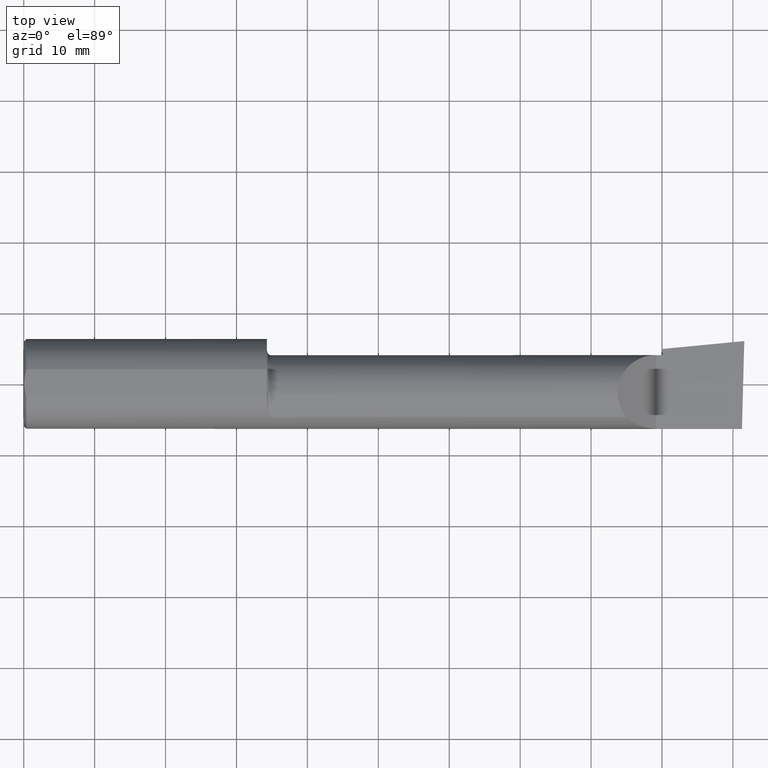
[diagram: clean part render]
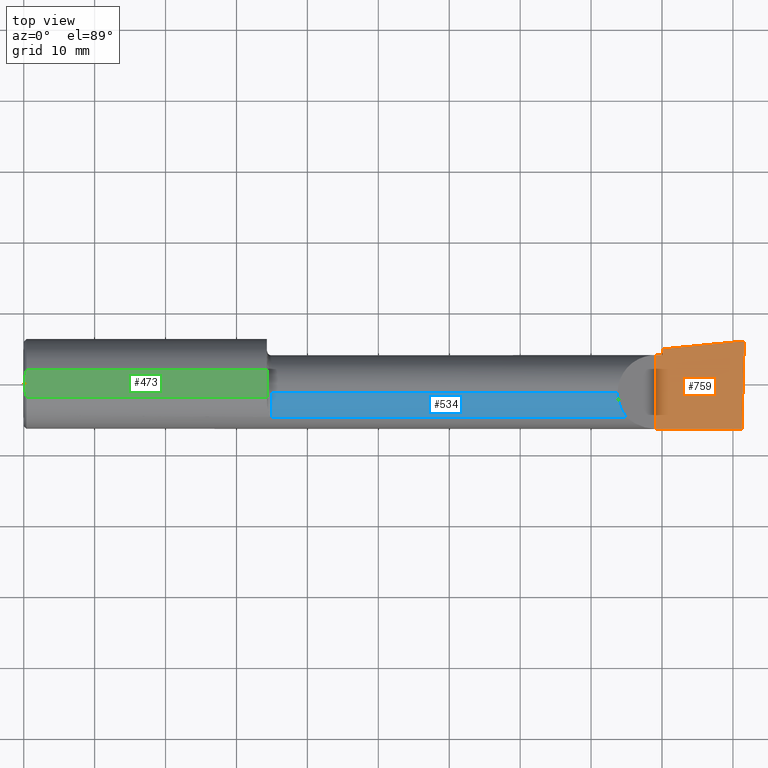
[diagram: same view with three faces highlighted in distinct colors, each labeled with its STEP entity id]
A machine part, top view with three faces highlighted in distinct colors.
Their STEP definitions:

[orange] entity #759 — the highlighted planar face has unit normal (-0, 0, -1).
#7 = LINE ( 'NONE', #620, #243 ) ;
#22 = DIRECTION ( 'NONE',  ( 0.9953961983671787417, 0.09584575252022452252, -1.506002207992170530E-16 ) ) ;
#49 = FACE_OUTER_BOUND ( 'NONE', #340, .T. ) ;
#56 = ORIENTED_EDGE ( 'NONE', *, *, #299, .F. ) ;
#91 = VERTEX_POINT ( 'NONE', #496 ) ;
#99 = DIRECTION ( 'NONE',  ( -1.512967610748942321E-16, 0.0000000000000000000, -1.000000000000000000 ) ) ;
#102 = DIRECTION ( 'NONE',  ( -0.0000000000000000000, 1.000000000000000000, -0.0000000000000000000 ) ) ;
#107 = CARTESIAN_POINT ( 'NONE',  ( 3.509999999999999787, -0.2498499999999999610, -6.245698675651499853E-17 ) ) ;
#115 = EDGE_CURVE ( 'NONE', #91, #428, #208, .T. ) ;
#144 = CARTESIAN_POINT ( 'NONE',  ( 0.9762916401177922365, -0.05299999999999998462, 3.208848816020454083E-16 ) ) ;
#173 = LINE ( 'NONE', #510, #322 ) ;
#189 = VERTEX_POINT ( 'NONE', #539 ) ;
#208 = LINE ( 'NONE', #144, #495 ) ;
#220 = CARTESIAN_POINT ( 'NONE',  ( 3.987226101480002782, -0.2496655036952227236, -1.346597502108382119E-16 ) ) ;
#229 = VERTEX_POINT ( 'NONE', #348 ) ;
#243 = VECTOR ( 'NONE', #737, 39.37007874015748143 ) ;
#249 = ORIENTED_EDGE ( 'NONE', *, *, #115, .F. ) ;
#299 = EDGE_CURVE ( 'NONE', #646, #91, #173, .T. ) ;
#322 = VECTOR ( 'NONE', #631, 39.37007874015748143 ) ;
#328 = VERTEX_POINT ( 'NONE', #107 ) ;
#331 = EDGE_CURVE ( 'NONE', #229, #328, #604, .T. ) ;
#333 = CARTESIAN_POINT ( 'NONE',  ( 3.509999999999999787, -0.2500000000000000555, -6.245698675651499853E-17 ) ) ;
#340 = EDGE_LOOP ( 'NONE', ( #564, #377, #249, #56, #548, #667 ) ) ;
#348 = CARTESIAN_POINT ( 'NONE',  ( 3.987221270274236229, -0.2498499999999999888, -1.346590301211604612E-16 ) ) ;
#357 = CARTESIAN_POINT ( 'NONE',  ( 7.089685198749692867E-32, -0.2498499999999999610, 4.685946446163635703E-16 ) ) ;
#373 = VECTOR ( 'NONE', #507, 39.37007874015748854 ) ;
#377 = ORIENTED_EDGE ( 'NONE', *, *, #753, .T. ) ;
#381 = AXIS2_PLACEMENT_3D ( 'NONE', #395, #99, #511 ) ;
#395 = CARTESIAN_POINT ( 'NONE',  ( 4.000000000000000000, -0.2500000000000000555, -1.365923996832131609E-16 ) ) ;
#407 = EDGE_CURVE ( 'NONE', #328, #189, #434, .T. ) ;
#428 = VERTEX_POINT ( 'NONE', #471 ) ;
#434 = LINE ( 'NONE', #333, #719 ) ;
#439 = CARTESIAN_POINT ( 'NONE',  ( 3.544999999999999929, 0.1601500000000001256, 4.685946446163642606E-16 ) ) ;
#461 = EDGE_CURVE ( 'NONE', #189, #646, #7, .T. ) ;
#471 = CARTESIAN_POINT ( 'NONE',  ( 4.000000000000013323, 0.2381500000000410511, 1.295322800245870883E-13 ) ) ;
#495 = VECTOR ( 'NONE', #22, 39.37007874015748143 ) ;
#496 = CARTESIAN_POINT ( 'NONE',  ( 3.544999999999999929, 0.1943384830701263555, 4.685947727122480717E-16 ) ) ;
#507 = DIRECTION ( 'NONE',  ( 0.02617694830786737245, 0.9996573249755573709, -3.901665791507032770E-18 ) ) ;
#510 = CARTESIAN_POINT ( 'NONE',  ( 3.544999999999999929, -0.2500000000000000555, -6.775237339413629936E-17 ) ) ;
#511 = DIRECTION ( 'NONE',  ( -1.000000000000000000, 0.0000000000000000000, 1.512967610748942321E-16 ) ) ;
#526 = LINE ( 'NONE', #220, #373 ) ;
#532 = DIRECTION ( 'NONE',  ( -1.000000000000000000, -0.0000000000000000000, -0.0000000000000000000 ) ) ;
#539 = CARTESIAN_POINT ( 'NONE',  ( 3.509999999999999787, 0.1601499999999999035, -6.245698675651499853E-17 ) ) ;
#548 = ORIENTED_EDGE ( 'NONE', *, *, #461, .F. ) ;
#564 = ORIENTED_EDGE ( 'NONE', *, *, #331, .F. ) ;
#604 = LINE ( 'NONE', #357, #741 ) ;
#620 = CARTESIAN_POINT ( 'NONE',  ( 7.089685198749692867E-32, 0.1601499999999998480, 4.685946446163635703E-16 ) ) ;
#631 = DIRECTION ( 'NONE',  ( 0.0000000000000000000, 1.000000000000000000, 0.0000000000000000000 ) ) ;
#646 = VERTEX_POINT ( 'NONE', #439 ) ;
#667 = ORIENTED_EDGE ( 'NONE', *, *, #407, .F. ) ;
#719 = VECTOR ( 'NONE', #102, 39.37007874015748143 ) ;
#737 = DIRECTION ( 'NONE',  ( 1.000000000000000000, 0.0000000000000000000, 0.0000000000000000000 ) ) ;
#740 = PLANE ( 'NONE',  #381 ) ;
#741 = VECTOR ( 'NONE', #532, 39.37007874015748143 ) ;
#753 = EDGE_CURVE ( 'NONE', #229, #428, #526, .T. ) ;
#759 = ADVANCED_FACE ( 'NONE', ( #49 ), #740, .F. ) ;

[blue] entity #534 — the highlighted cylindrical surface (partial cylindrical patch) has radius 5.414 mm, axis along (-1, -0, -0).
#4 = CARTESIAN_POINT ( 'NONE',  ( 0.0000000000000000000, -0.05299999999999998462, 0.0000000000000000000 ) ) ;
#66 = DIRECTION ( 'NONE',  ( 0.0000000000000000000, 0.0000000000000000000, 1.000000000000000000 ) ) ;
#113 = LINE ( 'NONE', #272, #406 ) ;
#120 = VERTEX_POINT ( 'NONE', #559 ) ;
#130 = DIRECTION ( 'NONE',  ( -1.000000000000000000, -0.0000000000000000000, -0.0000000000000000000 ) ) ;
#131 = ORIENTED_EDGE ( 'NONE', *, *, #599, .T. ) ;
#140 = LINE ( 'NONE', #236, #594 ) ;
#170 = CARTESIAN_POINT ( 'NONE',  ( 1.375000000000000000, -0.05299999999999998462, 0.2131499999999996731 ) ) ;
#174 = CARTESIAN_POINT ( 'NONE',  ( 1.375000000000000000, -0.05299999999999998462, 0.0000000000000000000 ) ) ;
#182 = CYLINDRICAL_SURFACE ( 'NONE', #323, 0.2131499999999998951 ) ;
#236 = CARTESIAN_POINT ( 'NONE',  ( 2.459999999999999964, -0.1868028301886797693, 0.1659208399614083285 ) ) ;
#272 = CARTESIAN_POINT ( 'NONE',  ( 0.0000000000000000000, -0.05299999999999998462, 0.2131499999999998951 ) ) ;
#296 = AXIS2_PLACEMENT_3D ( 'NONE', #174, #130, #354 ) ;
#323 = AXIS2_PLACEMENT_3D ( 'NONE', #4, #752, #66 ) ;
#329 = VERTEX_POINT ( 'NONE', #170 ) ;
#354 = DIRECTION ( 'NONE',  ( 0.0000000000000000000, 0.0000000000000000000, 1.000000000000000000 ) ) ;
#361 =( BOUNDED_CURVE ( )  B_SPLINE_CURVE ( 3, ( #535, #763, #502, #494 ),
 .UNSPECIFIED., .F., .F. ) 
 B_SPLINE_CURVE_WITH_KNOTS ( ( 4, 4 ),
 ( 5.604538515477350380, 6.283185307179586232 ),
 .UNSPECIFIED. ) 
 CURVE ( )  GEOMETRIC_REPRESENTATION_ITEM ( )  RATIONAL_B_SPLINE_CURVE ( ( 1.000000000000000000, 0.9619867256453027426, 0.9619867256453027426, 1.000000000000000000 ) ) 
 REPRESENTATION_ITEM ( '' )  );
#370 = EDGE_CURVE ( 'NONE', #751, #463, #361, .T. ) ;
#398 = CARTESIAN_POINT ( 'NONE',  ( 3.296849999999997394, -0.05299999999999998462, 0.2131499999999998951 ) ) ;
#406 = VECTOR ( 'NONE', #672, 39.37007874015748143 ) ;
#463 = VERTEX_POINT ( 'NONE', #398 ) ;
#482 = EDGE_CURVE ( 'NONE', #120, #329, #533, .T. ) ;
#494 = CARTESIAN_POINT ( 'NONE',  ( 3.296849999999997394, -0.05299999999999998462, 0.2131499999999998951 ) ) ;
#502 = CARTESIAN_POINT ( 'NONE',  ( 3.296849999999996950, -0.1021668565906567322, 0.2131499999999998118 ) ) ;
#533 = CIRCLE ( 'NONE', #296, 0.2131499999999996731 ) ;
#534 = ADVANCED_FACE ( 'NONE', ( #651 ), #182, .T. ) ;
#535 = CARTESIAN_POINT ( 'NONE',  ( 3.344079160038588849, -0.1868028301886788811, 0.1659208399614091889 ) ) ;
#559 = CARTESIAN_POINT ( 'NONE',  ( 1.375000000000000000, -0.1868028301886801024, 0.1659208399614077734 ) ) ;
#566 = CARTESIAN_POINT ( 'NONE',  ( 3.344079160038588849, -0.1868028301886788811, 0.1659208399614091889 ) ) ;
#594 = VECTOR ( 'NONE', #696, 39.37007874015748143 ) ;
#599 = EDGE_CURVE ( 'NONE', #120, #751, #140, .T. ) ;
#602 = ORIENTED_EDGE ( 'NONE', *, *, #482, .F. ) ;
#651 = FACE_OUTER_BOUND ( 'NONE', #713, .T. ) ;
#657 = ORIENTED_EDGE ( 'NONE', *, *, #676, .T. ) ;
#672 = DIRECTION ( 'NONE',  ( -1.000000000000000000, -0.0000000000000000000, -0.0000000000000000000 ) ) ;
#676 = EDGE_CURVE ( 'NONE', #463, #329, #113, .T. ) ;
#696 = DIRECTION ( 'NONE',  ( 1.000000000000000000, 0.0000000000000000000, 0.0000000000000000000 ) ) ;
#700 = ORIENTED_EDGE ( 'NONE', *, *, #370, .T. ) ;
#713 = EDGE_LOOP ( 'NONE', ( #700, #657, #602, #131 ) ) ;
#751 = VERTEX_POINT ( 'NONE', #566 ) ;
#752 = DIRECTION ( 'NONE',  ( -1.000000000000000000, -0.0000000000000000000, -0.0000000000000000000 ) ) ;
#763 = CARTESIAN_POINT ( 'NONE',  ( 3.313215146136121891, -0.1485302233682054551, 0.1967848538638756750 ) ) ;

[green] entity #473 — the highlighted planar face has unit normal (0, -0, -1).
#10 = DIRECTION ( 'NONE',  ( 0.0000000000000000000, 1.000000000000000000, -1.138839417068643993E-16 ) ) ;
#20 = ORIENTED_EDGE ( 'NONE', *, *, #26, .F. ) ;
#25 = EDGE_LOOP ( 'NONE', ( #215, #666, #601, #152, #20, #375, #288, #134 ) ) ;
#26 = EDGE_CURVE ( 'NONE', #619, #709, #82, .T. ) ;
#30 = CARTESIAN_POINT ( 'NONE',  ( 0.01499999999998191669, -0.07650098038590480432, 0.2378500000000000059 ) ) ;
#32 = B_SPLINE_CURVE_WITH_KNOTS ( 'NONE', 3,
 ( #671, #142, #497, #86 ),
 .UNSPECIFIED., .F., .F.,
 ( 4, 4 ),
 ( 0.4999999999997264966, 1.000000000000000000 ),
 .UNSPECIFIED. ) ;
#33 = LINE ( 'NONE', #452, #626 ) ;
#34 = CARTESIAN_POINT ( 'NONE',  ( 1.350000900032402251, -0.05299999999999998462, 0.2378500000000221548 ) ) ;
#44 = DIRECTION ( 'NONE',  ( 0.0000000000000000000, -1.000000000000000000, 1.138839417068643993E-16 ) ) ;
#47 = CARTESIAN_POINT ( 'NONE',  ( 0.004092330037930641193, 0.02606142970188499164, 0.2378500000000000059 ) ) ;
#59 = CARTESIAN_POINT ( 'NONE',  ( 1.350000000000000089, -0.04105010460297373043, 0.2378500000000000059 ) ) ;
#73 = CARTESIAN_POINT ( 'NONE',  ( 1.350001800035617983, -0.04901601311796584259, 0.2378500024320483464 ) ) ;
#75 = CARTESIAN_POINT ( 'NONE',  ( 1.350000900032402251, -0.05299999999999998462, 0.2378500000000221548 ) ) ;
#79 = CARTESIAN_POINT ( 'NONE',  ( 0.0000000000000000000, -0.07650098038587477278, 0.2378500000000000059 ) ) ;
#80 = CARTESIAN_POINT ( 'NONE',  ( 1.350000000000000089, 0.07650098038587482829, 0.2378500000000000059 ) ) ;
#82 = LINE ( 'NONE', #79, #694 ) ;
#86 = CARTESIAN_POINT ( 'NONE',  ( 1.350000000000000089, -0.06494989539702619719, 0.2378500000000000059 ) ) ;
#92 = CARTESIAN_POINT ( 'NONE',  ( 0.003000000000000035624, 4.000210840755228160E-17, 0.2378500000000000059 ) ) ;
#94 = B_SPLINE_CURVE_WITH_KNOTS ( 'NONE', 3,
 ( #59, #112, #73, #75 ),
 .UNSPECIFIED., .F., .F.,
 ( 4, 4 ),
 ( 0.0000000000000000000, 0.4999999999997264966 ),
 .UNSPECIFIED. ) ;
#97 = CARTESIAN_POINT ( 'NONE',  ( 0.003000000000000061645, -0.01298133447204029636, 0.2378500000000000059 ) ) ;
#111 = B_SPLINE_CURVE_WITH_KNOTS ( 'NONE', 3,
 ( #523, #190, #47, #531, #183, #163 ),
 .UNSPECIFIED., .F., .F.,
 ( 4, 2, 4 ),
 ( 0.004653101494310745746, 0.005634627094920350784, 0.006616152695529954955 ),
 .UNSPECIFIED. ) ;
#112 = CARTESIAN_POINT ( 'NONE',  ( 1.350000000000000089, -0.04503596074371485347, 0.2378500000000000059 ) ) ;
#118 = CARTESIAN_POINT ( 'NONE',  ( 0.004068542164723859197, -0.02585015905295368760, 0.2378499999999999226 ) ) ;
#134 = ORIENTED_EDGE ( 'NONE', *, *, #525, .F. ) ;
#136 = CARTESIAN_POINT ( 'NONE',  ( 4.000000000000000000, 0.2998500000000000609, 0.2378499999999999504 ) ) ;
#142 = CARTESIAN_POINT ( 'NONE',  ( 1.350001800093990401, -0.05698398688203849816, 0.2378499975680403167 ) ) ;
#152 = ORIENTED_EDGE ( 'NONE', *, *, #405, .F. ) ;
#157 = CARTESIAN_POINT ( 'NONE',  ( 0.008160184410935175658, -0.05138200716576606791, 0.2378500000000000336 ) ) ;
#163 = CARTESIAN_POINT ( 'NONE',  ( 0.01499999999999999771, 0.07650098038587481442, 0.2378500000000000059 ) ) ;
#176 = CARTESIAN_POINT ( 'NONE',  ( 0.0000000000000000000, 0.07650098038587481442, 0.2378500000000000059 ) ) ;
#180 = CARTESIAN_POINT ( 'NONE',  ( 0.01499999999999999771, 0.07650098038587481442, 0.2378500000000000059 ) ) ;
#183 = CARTESIAN_POINT ( 'NONE',  ( 0.01120763235350239959, 0.06411521680875344187, 0.2378500000000000336 ) ) ;
#190 = CARTESIAN_POINT ( 'NONE',  ( 0.003000000000000063380, 0.01299872814765622858, 0.2378499999999999226 ) ) ;
#204 = CARTESIAN_POINT ( 'NONE',  ( 1.350000000000000089, -0.07650098038590487370, 0.2378500000000000059 ) ) ;
#214 = CARTESIAN_POINT ( 'NONE',  ( 1.350000000000000089, -0.06494989539702619719, 0.2378500000000000059 ) ) ;
#215 = ORIENTED_EDGE ( 'NONE', *, *, #297, .F. ) ;
#219 = PLANE ( 'NONE',  #327 ) ;
#265 = VERTEX_POINT ( 'NONE', #34 ) ;
#288 = ORIENTED_EDGE ( 'NONE', *, *, #643, .F. ) ;
#289 = CARTESIAN_POINT ( 'NONE',  ( 0.01120982745448978989, -0.06412238594540857484, 0.2378500000000000336 ) ) ;
#297 = EDGE_CURVE ( 'NONE', #641, #321, #33, .T. ) ;
#307 = VECTOR ( 'NONE', #650, 39.37007874015748143 ) ;
#316 = VERTEX_POINT ( 'NONE', #576 ) ;
#321 = VERTEX_POINT ( 'NONE', #636 ) ;
#327 = AXIS2_PLACEMENT_3D ( 'NONE', #136, #519, #10 ) ;
#332 = EDGE_CURVE ( 'NONE', #603, #641, #758, .T. ) ;
#336 = CARTESIAN_POINT ( 'NONE',  ( 0.01499999999998191669, -0.07650098038590480432, 0.2378500000000000059 ) ) ;
#375 = ORIENTED_EDGE ( 'NONE', *, *, #524, .F. ) ;
#376 = VECTOR ( 'NONE', #44, 39.37007874015748143 ) ;
#382 = DIRECTION ( 'NONE',  ( -1.000000000000000000, -0.0000000000000000000, -0.0000000000000000000 ) ) ;
#394 = B_SPLINE_CURVE_WITH_KNOTS ( 'NONE', 3,
 ( #336, #289, #157, #118, #97, #92 ),
 .UNSPECIFIED., .F., .F.,
 ( 4, 2, 4 ),
 ( 0.002692677063605041030, 0.003672889278957893171, 0.004653101494310745746 ),
 .UNSPECIFIED. ) ;
#405 = EDGE_CURVE ( 'NONE', #709, #316, #394, .T. ) ;
#452 = CARTESIAN_POINT ( 'NONE',  ( 1.350000000000000089, 0.2998500000000000609, 0.2378499999999999504 ) ) ;
#473 = ADVANCED_FACE ( 'NONE', ( #553 ), #219, .F. ) ;
#497 = CARTESIAN_POINT ( 'NONE',  ( 1.350000000000000089, -0.06096394231309017891, 0.2378500000000000059 ) ) ;
#517 = EDGE_CURVE ( 'NONE', #316, #603, #111, .T. ) ;
#519 = DIRECTION ( 'NONE',  ( 0.0000000000000000000, -1.138839417068643993E-16, -1.000000000000000000 ) ) ;
#523 = CARTESIAN_POINT ( 'NONE',  ( 0.003000000000000035624, 4.000210840755228160E-17, 0.2378500000000000059 ) ) ;
#524 = EDGE_CURVE ( 'NONE', #703, #619, #664, .T. ) ;
#525 = EDGE_CURVE ( 'NONE', #321, #265, #94, .T. ) ;
#527 = CARTESIAN_POINT ( 'NONE',  ( 1.350000000000000089, 0.2998500000000000609, 0.2378499999999999504 ) ) ;
#531 = CARTESIAN_POINT ( 'NONE',  ( 0.008199648822848978544, 0.05156445313451100965, 0.2378500000000000059 ) ) ;
#553 = FACE_OUTER_BOUND ( 'NONE', #25, .T. ) ;
#576 = CARTESIAN_POINT ( 'NONE',  ( 0.003000000000000035624, 4.000210840755228160E-17, 0.2378500000000000059 ) ) ;
#601 = ORIENTED_EDGE ( 'NONE', *, *, #517, .F. ) ;
#603 = VERTEX_POINT ( 'NONE', #180 ) ;
#619 = VERTEX_POINT ( 'NONE', #204 ) ;
#626 = VECTOR ( 'NONE', #739, 39.37007874015748143 ) ;
#636 = CARTESIAN_POINT ( 'NONE',  ( 1.350000000000000089, -0.04105010460297373043, 0.2378500000000000059 ) ) ;
#641 = VERTEX_POINT ( 'NONE', #80 ) ;
#643 = EDGE_CURVE ( 'NONE', #265, #703, #32, .T. ) ;
#650 = DIRECTION ( 'NONE',  ( 1.000000000000000000, 0.0000000000000000000, 0.0000000000000000000 ) ) ;
#664 = LINE ( 'NONE', #527, #376 ) ;
#666 = ORIENTED_EDGE ( 'NONE', *, *, #332, .F. ) ;
#671 = CARTESIAN_POINT ( 'NONE',  ( 1.350000900032402251, -0.05299999999999998462, 0.2378500000000221548 ) ) ;
#694 = VECTOR ( 'NONE', #382, 39.37007874015748143 ) ;
#703 = VERTEX_POINT ( 'NONE', #214 ) ;
#709 = VERTEX_POINT ( 'NONE', #30 ) ;
#739 = DIRECTION ( 'NONE',  ( 0.0000000000000000000, -1.000000000000000000, 1.138839417068643993E-16 ) ) ;
#758 = LINE ( 'NONE', #176, #307 ) ;